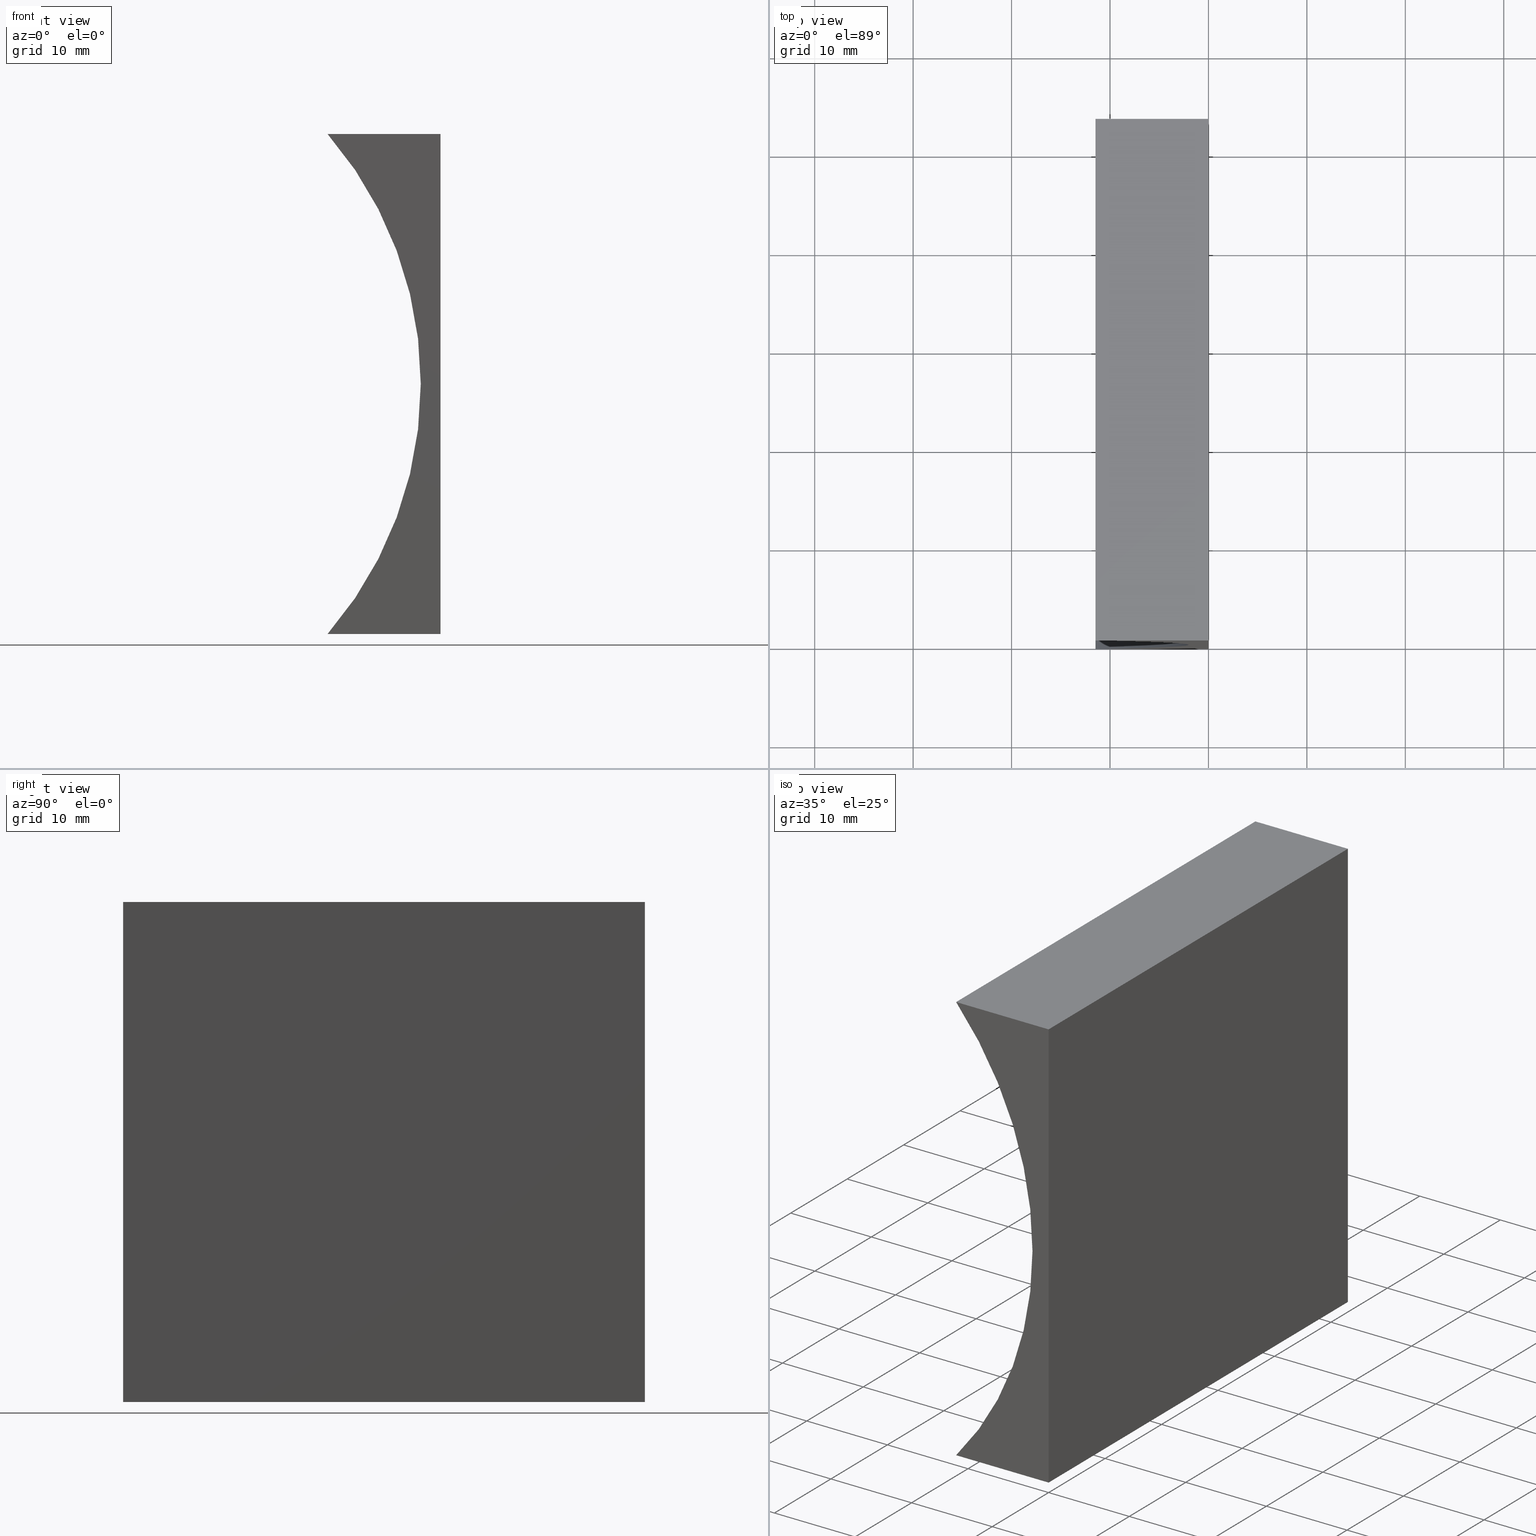
[diagram: canonical four-view strip — front | top / right | iso, engineering-drawing reading convention]
A machine part, canonical four-view strip (front | top / right | iso — engineering-drawing reading convention). The complete STEP part file that produces these views, byte-faithful:
ISO-10303-21;
HEADER;
FILE_DESCRIPTION (( 'STEP AP214' ),
    '1' );
FILE_NAME ('155364.STEP',
    '2019-07-01T03:18:52',
    ( 'user' ),
    ( '΢���й�' ),
    'SwSTEP 2.0',
    'SolidWorks 2016',
    '' );
FILE_SCHEMA (( 'AUTOMOTIVE_DESIGN' ));
ENDSEC;

DATA;
#1 = DIRECTION ( 'NONE',  ( 1.000000000000000000, -0.0000000000000000000, -0.0000000000000000000 ) ) ;
#2 = EDGE_CURVE ( 'NONE', #50, #4, #37, .T. ) ;
#3 = ORIENTED_EDGE ( 'NONE', *, *, #184, .F. ) ;
#4 = VERTEX_POINT ( 'NONE', #181 ) ;
#5 = EDGE_CURVE ( 'NONE', #195, #178, #94, .T. ) ;
#6 = PRODUCT_DEFINITION_CONTEXT ( 'detailed design', #67, 'design' ) ;
#7 = ORIENTED_EDGE ( 'NONE', *, *, #2, .F. ) ;
#8 = ADVANCED_FACE ( 'NONE', ( #116 ), #63, .F. ) ;
#9 = SHAPE_DEFINITION_REPRESENTATION ( #166, #182 ) ;
#10 = CARTESIAN_POINT ( 'NONE',  ( 3.110602869834276900E-015, 0.0000000000000000000, 50.79999999999999700 ) ) ;
#11 = DIRECTION ( 'NONE',  ( -0.0000000000000000000, -1.000000000000000000, -0.0000000000000000000 ) ) ;
#12 = APPLICATION_PROTOCOL_DEFINITION ( 'draft international standard', 'automotive_design', 1998, #27 ) ;
#13 = ORIENTED_EDGE ( 'NONE', *, *, #124, .T. ) ;
#14 = COLOUR_RGB ( '',1.000000000000000000, 1.000000000000000000, 1.000000000000000000 ) ;
#15 = EDGE_CURVE ( 'NONE', #119, #142, #62, .T. ) ;
#16 = CARTESIAN_POINT ( 'NONE',  ( 0.0000000000000000000, 53.00000000000000000, 0.0000000000000000000 ) ) ;
#17 = EDGE_LOOP ( 'NONE', ( #112, #61, #59, #92 ) ) ;
#18 = LINE ( 'NONE', #98, #23 ) ;
#19 = ORIENTED_EDGE ( 'NONE', *, *, #21, .F. ) ;
#20 = ORIENTED_EDGE ( 'NONE', *, *, #184, .T. ) ;
#21 = EDGE_CURVE ( 'NONE', #136, #50, #18, .T. ) ;
#22 = ADVANCED_FACE ( 'NONE', ( #107 ), #58, .F. ) ;
#23 = VECTOR ( 'NONE', #1, 1000.000000000000000 ) ;
#24 = DIRECTION ( 'NONE',  ( -0.0000000000000000000, -1.000000000000000000, -0.0000000000000000000 ) ) ;
#25 = DIRECTION ( 'NONE',  ( -0.0000000000000000000, -1.000000000000000000, -0.0000000000000000000 ) ) ;
#26 = DIRECTION ( 'NONE',  ( -0.0000000000000000000, -1.000000000000000000, -0.0000000000000000000 ) ) ;
#27 = APPLICATION_CONTEXT ( 'automotive_design' ) ;
#28 = LINE ( 'NONE', #118, #64 ) ;
#29 = DIRECTION ( 'NONE',  ( 0.0000000000000000000, 0.0000000000000000000, 1.000000000000000000 ) ) ;
#30 = LINE ( 'NONE', #73, #83 ) ;
#31 = DIRECTION ( 'NONE',  ( 6.123233995736766000E-017, 0.0000000000000000000, 1.000000000000000000 ) ) ;
#32 = CARTESIAN_POINT ( 'NONE',  ( -40.79999999999999000, 0.0000000000000000000, 25.39999999999999900 ) ) ;
#33 =( GEOMETRIC_REPRESENTATION_CONTEXT ( 3 ) GLOBAL_UNCERTAINTY_ASSIGNED_CONTEXT ( ( #176 ) ) GLOBAL_UNIT_ASSIGNED_CONTEXT ( ( #88, #168, #69 ) ) REPRESENTATION_CONTEXT ( 'NONE', 'WORKASPACE' ) );
#34 = LINE ( 'NONE', #54, #115 ) ;
#35 = CLOSED_SHELL ( 'NONE', ( #146, #130, #65, #22, #86, #8 ) ) ;
#36 = COLOUR_RGB ( '',1.000000000000000000, 1.000000000000000000, 1.000000000000000000 ) ;
#37 = LINE ( 'NONE', #48, #204 ) ;
#38 = CARTESIAN_POINT ( 'NONE',  ( 3.110602869834276900E-015, 53.00000000000000000, 50.79999999999999700 ) ) ;
#39 = FILL_AREA_STYLE_COLOUR ( '', #36 ) ;
#40 = DIRECTION ( 'NONE',  ( -1.000000000000000000, 0.0000000000000000000, -0.0000000000000000000 ) ) ;
#41 = EDGE_LOOP ( 'NONE', ( #13, #3, #19, #52 ) ) ;
#42 = PRESENTATION_STYLE_ASSIGNMENT (( #188 ) ) ;
#43 = EDGE_CURVE ( 'NONE', #4, #172, #145, .T. ) ;
#44 = SURFACE_SIDE_STYLE ('',( #139 ) ) ;
#45 = ORIENTED_EDGE ( 'NONE', *, *, #15, .T. ) ;
#46 = FILL_AREA_STYLE_COLOUR ( '', #14 ) ;
#47 = DIRECTION ( 'NONE',  ( -1.000000000000000000, 0.0000000000000000000, 6.123233995736766000E-017 ) ) ;
#48 = CARTESIAN_POINT ( 'NONE',  ( 0.0000000000000000000, 53.00000000000000000, 0.0000000000000000000 ) ) ;
#49 = ORIENTED_EDGE ( 'NONE', *, *, #106, .F. ) ;
#50 = VERTEX_POINT ( 'NONE', #150 ) ;
#51 = ORIENTED_EDGE ( 'NONE', *, *, #137, .F. ) ;
#52 = ORIENTED_EDGE ( 'NONE', *, *, #137, .T. ) ;
#53 = VECTOR ( 'NONE', #164, 1000.000000000000000 ) ;
#54 = CARTESIAN_POINT ( 'NONE',  ( -11.46946983090826900, 53.00000000000000000, 50.79999999999999700 ) ) ;
#55 = CARTESIAN_POINT ( 'NONE',  ( -40.79999999999999000, 53.00000000000000000, 25.39999999999999900 ) ) ;
#56 = ORIENTED_EDGE ( 'NONE', *, *, #141, .T. ) ;
#57 =( LENGTH_UNIT ( ) NAMED_UNIT ( * ) SI_UNIT ( .MILLI., .METRE. ) );
#58 = PLANE ( 'NONE',  #127 ) ;
#59 = ORIENTED_EDGE ( 'NONE', *, *, #43, .F. ) ;
#60 = MECHANICAL_DESIGN_GEOMETRIC_PRESENTATION_REPRESENTATION (  '', ( #179 ), #125 ) ;
#61 = ORIENTED_EDGE ( 'NONE', *, *, #96, .F. ) ;
#62 = CIRCLE ( 'NONE', #199, 38.79999999999998300 ) ;
#63 = PLANE ( 'NONE',  #165 ) ;
#64 = VECTOR ( 'NONE', #131, 1000.000000000000000 ) ;
#65 = ADVANCED_FACE ( 'NONE', ( #99 ), #140, .F. ) ;
#66 = VECTOR ( 'NONE', #134, 1000.000000000000000 ) ;
#67 = APPLICATION_CONTEXT ( 'automotive_design' ) ;
#68 = CARTESIAN_POINT ( 'NONE',  ( -11.46946983090827900, 53.00000000000000000, 0.0000000000000000000 ) ) ;
#69 =( NAMED_UNIT ( * ) SI_UNIT ( $, .STERADIAN. ) SOLID_ANGLE_UNIT ( ) );
#70 = DIRECTION ( 'NONE',  ( 0.0000000000000000000, 1.000000000000000000, 0.0000000000000000000 ) ) ;
#71 =( NAMED_UNIT ( * ) SI_UNIT ( $, .STERADIAN. ) SOLID_ANGLE_UNIT ( ) );
#72 = AXIS2_PLACEMENT_3D ( 'NONE', #55, #187, #148 ) ;
#73 = CARTESIAN_POINT ( 'NONE',  ( 3.110602869834276900E-015, 53.00000000000000000, 50.79999999999999700 ) ) ;
#74 = SURFACE_STYLE_FILL_AREA ( #200 ) ;
#75 = CARTESIAN_POINT ( 'NONE',  ( 0.0000000000000000000, 0.0000000000000000000, 0.0000000000000000000 ) ) ;
#76 = CYLINDRICAL_SURFACE ( 'NONE', #72, 38.79999999999999000 ) ;
#77 = DIRECTION ( 'NONE',  ( -0.0000000000000000000, -1.000000000000000000, -0.0000000000000000000 ) ) ;
#78 = UNCERTAINTY_MEASURE_WITH_UNIT (LENGTH_MEASURE( 1.000000000000000100E-005 ), #57, 'distance_accuracy_value', 'NONE');
#79 = DIRECTION ( 'NONE',  ( -0.0000000000000000000, -1.000000000000000000, -0.0000000000000000000 ) ) ;
#80 = PRODUCT_DEFINITION ( 'δ֪', '', #193, #6 ) ;
#81 = ORIENTED_EDGE ( 'NONE', *, *, #43, .T. ) ;
#82 = EDGE_CURVE ( 'NONE', #178, #119, #28, .T. ) ;
#83 = VECTOR ( 'NONE', #77, 1000.000000000000000 ) ;
#84 = ORIENTED_EDGE ( 'NONE', *, *, #21, .T. ) ;
#85 = PRODUCT ( '155364', '155364', '', ( #170 ) ) ;
#86 = ADVANCED_FACE ( 'NONE', ( #196 ), #89, .T. ) ;
#87 =( GEOMETRIC_REPRESENTATION_CONTEXT ( 3 ) GLOBAL_UNCERTAINTY_ASSIGNED_CONTEXT ( ( #78 ) ) GLOBAL_UNIT_ASSIGNED_CONTEXT ( ( #57, #122, #108 ) ) REPRESENTATION_CONTEXT ( 'NONE', 'WORKASPACE' ) );
#88 =( LENGTH_UNIT ( ) NAMED_UNIT ( * ) SI_UNIT ( .MILLI., .METRE. ) );
#89 = PLANE ( 'NONE',  #158 ) ;
#90 = EDGE_LOOP ( 'NONE', ( #102, #163, #95, #180 ) ) ;
#91 = CARTESIAN_POINT ( 'NONE',  ( 0.0000000000000000000, 0.0000000000000000000, 0.0000000000000000000 ) ) ;
#92 = ORIENTED_EDGE ( 'NONE', *, *, #106, .T. ) ;
#93 = DIRECTION ( 'NONE',  ( 1.000000000000000000, 0.0000000000000000000, -0.0000000000000000000 ) ) ;
#94 = LINE ( 'NONE', #161, #53 ) ;
#95 = ORIENTED_EDGE ( 'NONE', *, *, #124, .F. ) ;
#96 = EDGE_CURVE ( 'NONE', #172, #119, #192, .T. ) ;
#97 = EDGE_LOOP ( 'NONE', ( #191, #49, #7, #20 ) ) ;
#98 = CARTESIAN_POINT ( 'NONE',  ( 3.110602869834276900E-015, 53.00000000000000000, 50.79999999999999700 ) ) ;
#99 = FACE_OUTER_BOUND ( 'NONE', #41, .T. ) ;
#100 = CARTESIAN_POINT ( 'NONE',  ( 3.110602869834276900E-015, 0.0000000000000000000, 50.79999999999999700 ) ) ;
#101 = SURFACE_SIDE_STYLE ('',( #74 ) ) ;
#102 = ORIENTED_EDGE ( 'NONE', *, *, #82, .F. ) ;
#103 = AXIS2_PLACEMENT_3D ( 'NONE', #175, #26, #29 ) ;
#104 = ORIENTED_EDGE ( 'NONE', *, *, #96, .T. ) ;
#105 = APPLICATION_PROTOCOL_DEFINITION ( 'draft international standard', 'automotive_design', 1998, #67 ) ;
#106 = EDGE_CURVE ( 'NONE', #4, #178, #152, .T. ) ;
#107 = FACE_OUTER_BOUND ( 'NONE', #97, .T. ) ;
#108 =( NAMED_UNIT ( * ) SI_UNIT ( $, .STERADIAN. ) SOLID_ANGLE_UNIT ( ) );
#109 = VECTOR ( 'NONE', #25, 1000.000000000000000 ) ;
#110 = LINE ( 'NONE', #10, #66 ) ;
#111 = MANIFOLD_SOLID_BREP ( '͹̨-����1', #35 ) ;
#112 = ORIENTED_EDGE ( 'NONE', *, *, #82, .T. ) ;
#113 = VECTOR ( 'NONE', #11, 1000.000000000000000 ) ;
#114 = DIRECTION ( 'NONE',  ( 0.0000000000000000000, -0.0000000000000000000, 1.000000000000000000 ) ) ;
#115 = VECTOR ( 'NONE', #24, 1000.000000000000000 ) ;
#116 = FACE_OUTER_BOUND ( 'NONE', #90, .T. ) ;
#117 = CARTESIAN_POINT ( 'NONE',  ( -11.46946983090827900, 0.0000000000000000000, 0.0000000000000000000 ) ) ;
#118 = CARTESIAN_POINT ( 'NONE',  ( 0.0000000000000000000, 0.0000000000000000000, 0.0000000000000000000 ) ) ;
#119 = VERTEX_POINT ( 'NONE', #117 ) ;
#120 = ORIENTED_EDGE ( 'NONE', *, *, #141, .F. ) ;
#121 = AXIS2_PLACEMENT_3D ( 'NONE', #75, #190, #201 ) ;
#122 =( NAMED_UNIT ( * ) PLANE_ANGLE_UNIT ( ) SI_UNIT ( $, .RADIAN. ) );
#123 = DIRECTION ( 'NONE',  ( -1.000000000000000000, 0.0000000000000000000, 0.0000000000000000000 ) ) ;
#124 = EDGE_CURVE ( 'NONE', #142, #195, #110, .T. ) ;
#125 =( GEOMETRIC_REPRESENTATION_CONTEXT ( 3 ) GLOBAL_UNCERTAINTY_ASSIGNED_CONTEXT ( ( #133 ) ) GLOBAL_UNIT_ASSIGNED_CONTEXT ( ( #198, #183, #71 ) ) REPRESENTATION_CONTEXT ( 'NONE', 'WORKASPACE' ) );
#126 = EDGE_LOOP ( 'NONE', ( #81, #56, #84, #144 ) ) ;
#127 = AXIS2_PLACEMENT_3D ( 'NONE', #157, #47, #31 ) ;
#128 = EDGE_LOOP ( 'NONE', ( #45, #51, #120, #104 ) ) ;
#129 = DIRECTION ( 'NONE',  ( 0.0000000000000000000, 1.000000000000000000, 0.0000000000000000000 ) ) ;
#130 = ADVANCED_FACE ( 'NONE', ( #197 ), #76, .F. ) ;
#131 = DIRECTION ( 'NONE',  ( -1.000000000000000000, 0.0000000000000000000, 0.0000000000000000000 ) ) ;
#132 = PLANE ( 'NONE',  #202 ) ;
#133 = UNCERTAINTY_MEASURE_WITH_UNIT (LENGTH_MEASURE( 1.000000000000000100E-005 ), #198, 'distance_accuracy_value', 'NONE');
#134 = DIRECTION ( 'NONE',  ( 1.000000000000000000, -0.0000000000000000000, -0.0000000000000000000 ) ) ;
#135 = DIRECTION ( 'NONE',  ( 0.0000000000000000000, 0.0000000000000000000, -1.000000000000000000 ) ) ;
#136 = VERTEX_POINT ( 'NONE', #167 ) ;
#137 = EDGE_CURVE ( 'NONE', #136, #142, #34, .T. ) ;
#138 = FILL_AREA_STYLE ('',( #46 ) ) ;
#139 = SURFACE_STYLE_FILL_AREA ( #138 ) ;
#140 = PLANE ( 'NONE',  #155 ) ;
#141 = EDGE_CURVE ( 'NONE', #172, #136, #154, .T. ) ;
#142 = VERTEX_POINT ( 'NONE', #186 ) ;
#143 = VECTOR ( 'NONE', #123, 1000.000000000000000 ) ;
#144 = ORIENTED_EDGE ( 'NONE', *, *, #2, .T. ) ;
#145 = LINE ( 'NONE', #16, #143 ) ;
#146 = ADVANCED_FACE ( 'NONE', ( #159 ), #132, .F. ) ;
#147 = PRESENTATION_LAYER_ASSIGNMENT (  '', '', ( #173 ) ) ;
#148 = DIRECTION ( 'NONE',  ( 0.0000000000000000000, 0.0000000000000000000, -1.000000000000000000 ) ) ;
#149 = CARTESIAN_POINT ( 'NONE',  ( 0.0000000000000000000, 53.00000000000000000, 0.0000000000000000000 ) ) ;
#150 = CARTESIAN_POINT ( 'NONE',  ( 3.110602869834276900E-015, 53.00000000000000000, 50.79999999999999700 ) ) ;
#151 = CARTESIAN_POINT ( 'NONE',  ( 0.0000000000000000000, 53.00000000000000000, 0.0000000000000000000 ) ) ;
#152 = LINE ( 'NONE', #149, #113 ) ;
#153 = SURFACE_STYLE_USAGE ( .BOTH. , #44 ) ;
#154 = CIRCLE ( 'NONE', #103, 38.79999999999998300 ) ;
#155 = AXIS2_PLACEMENT_3D ( 'NONE', #38, #135, #40 ) ;
#156 = DIRECTION ( 'NONE',  ( -6.123233995736766000E-017, -0.0000000000000000000, -1.000000000000000000 ) ) ;
#157 = CARTESIAN_POINT ( 'NONE',  ( 0.0000000000000000000, 53.00000000000000000, 0.0000000000000000000 ) ) ;
#158 = AXIS2_PLACEMENT_3D ( 'NONE', #162, #70, #189 ) ;
#159 = FACE_OUTER_BOUND ( 'NONE', #17, .T. ) ;
#160 = MECHANICAL_DESIGN_GEOMETRIC_PRESENTATION_REPRESENTATION (  '', ( #173 ), #33 ) ;
#161 = CARTESIAN_POINT ( 'NONE',  ( 0.0000000000000000000, 0.0000000000000000000, 0.0000000000000000000 ) ) ;
#162 = CARTESIAN_POINT ( 'NONE',  ( -40.79999999999999000, 53.00000000000000000, 25.39999999999999900 ) ) ;
#163 = ORIENTED_EDGE ( 'NONE', *, *, #5, .F. ) ;
#164 = DIRECTION ( 'NONE',  ( -6.123233995736766000E-017, -0.0000000000000000000, -1.000000000000000000 ) ) ;
#165 = AXIS2_PLACEMENT_3D ( 'NONE', #32, #129, #114 ) ;
#166 = PRODUCT_DEFINITION_SHAPE ( 'NONE', 'NONE',  #80 ) ;
#167 = CARTESIAN_POINT ( 'NONE',  ( -11.46946983090826900, 53.00000000000000000, 50.79999999999999700 ) ) ;
#168 =( NAMED_UNIT ( * ) PLANE_ANGLE_UNIT ( ) SI_UNIT ( $, .RADIAN. ) );
#169 = CARTESIAN_POINT ( 'NONE',  ( -11.46946983090827900, 53.00000000000000000, 0.0000000000000000000 ) ) ;
#170 = PRODUCT_CONTEXT ( 'NONE', #27, 'mechanical' ) ;
#171 = PRESENTATION_LAYER_ASSIGNMENT (  '', '', ( #179 ) ) ;
#172 = VERTEX_POINT ( 'NONE', #68 ) ;
#173 = STYLED_ITEM ( 'NONE', ( #42 ), #111 ) ;
#174 = DIRECTION ( 'NONE',  ( 0.0000000000000000000, -0.0000000000000000000, 1.000000000000000000 ) ) ;
#175 = CARTESIAN_POINT ( 'NONE',  ( -40.79999999999999000, 53.00000000000000000, 25.39999999999999900 ) ) ;
#176 = UNCERTAINTY_MEASURE_WITH_UNIT (LENGTH_MEASURE( 1.000000000000000100E-005 ), #88, 'distance_accuracy_value', 'NONE');
#177 = DIRECTION ( 'NONE',  ( 0.0000000000000000000, 0.0000000000000000000, 1.000000000000000000 ) ) ;
#178 = VERTEX_POINT ( 'NONE', #91 ) ;
#179 = STYLED_ITEM ( 'NONE', ( #185 ), #182 ) ;
#180 = ORIENTED_EDGE ( 'NONE', *, *, #15, .F. ) ;
#181 = CARTESIAN_POINT ( 'NONE',  ( 0.0000000000000000000, 53.00000000000000000, 0.0000000000000000000 ) ) ;
#182 = ADVANCED_BREP_SHAPE_REPRESENTATION ( '155364', ( #111, #121 ), #87 ) ;
#183 =( NAMED_UNIT ( * ) PLANE_ANGLE_UNIT ( ) SI_UNIT ( $, .RADIAN. ) );
#184 = EDGE_CURVE ( 'NONE', #50, #195, #30, .T. ) ;
#185 = PRESENTATION_STYLE_ASSIGNMENT (( #153 ) ) ;
#186 = CARTESIAN_POINT ( 'NONE',  ( -11.46946983090826900, 0.0000000000000000000, 50.79999999999999700 ) ) ;
#187 = DIRECTION ( 'NONE',  ( -0.0000000000000000000, -1.000000000000000000, -0.0000000000000000000 ) ) ;
#188 = SURFACE_STYLE_USAGE ( .BOTH. , #101 ) ;
#189 = DIRECTION ( 'NONE',  ( 0.0000000000000000000, -0.0000000000000000000, 1.000000000000000000 ) ) ;
#190 = DIRECTION ( 'NONE',  ( 0.0000000000000000000, 0.0000000000000000000, 1.000000000000000000 ) ) ;
#191 = ORIENTED_EDGE ( 'NONE', *, *, #5, .T. ) ;
#192 = LINE ( 'NONE', #169, #109 ) ;
#193 = PRODUCT_DEFINITION_FORMATION_WITH_SPECIFIED_SOURCE ( '�κ�', '', #85, .NOT_KNOWN. ) ;
#194 = CARTESIAN_POINT ( 'NONE',  ( -40.79999999999999000, 0.0000000000000000000, 25.39999999999999900 ) ) ;
#195 = VERTEX_POINT ( 'NONE', #100 ) ;
#196 = FACE_OUTER_BOUND ( 'NONE', #126, .T. ) ;
#197 = FACE_OUTER_BOUND ( 'NONE', #128, .T. ) ;
#198 =( LENGTH_UNIT ( ) NAMED_UNIT ( * ) SI_UNIT ( .MILLI., .METRE. ) );
#199 = AXIS2_PLACEMENT_3D ( 'NONE', #194, #79, #177 ) ;
#200 = FILL_AREA_STYLE ('',( #39 ) ) ;
#201 = DIRECTION ( 'NONE',  ( 1.000000000000000000, 0.0000000000000000000, 0.0000000000000000000 ) ) ;
#202 = AXIS2_PLACEMENT_3D ( 'NONE', #151, #174, #93 ) ;
#203 = PRODUCT_RELATED_PRODUCT_CATEGORY ( 'part', '', ( #85 ) ) ;
#204 = VECTOR ( 'NONE', #156, 1000.000000000000000 ) ;
ENDSEC;
END-ISO-10303-21;
